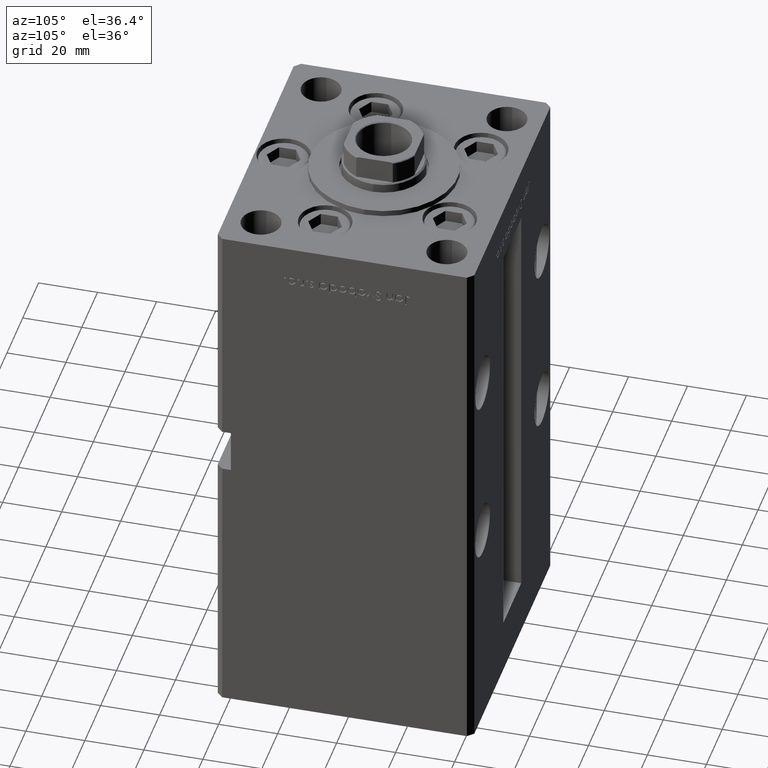
[diagram: clean part render]
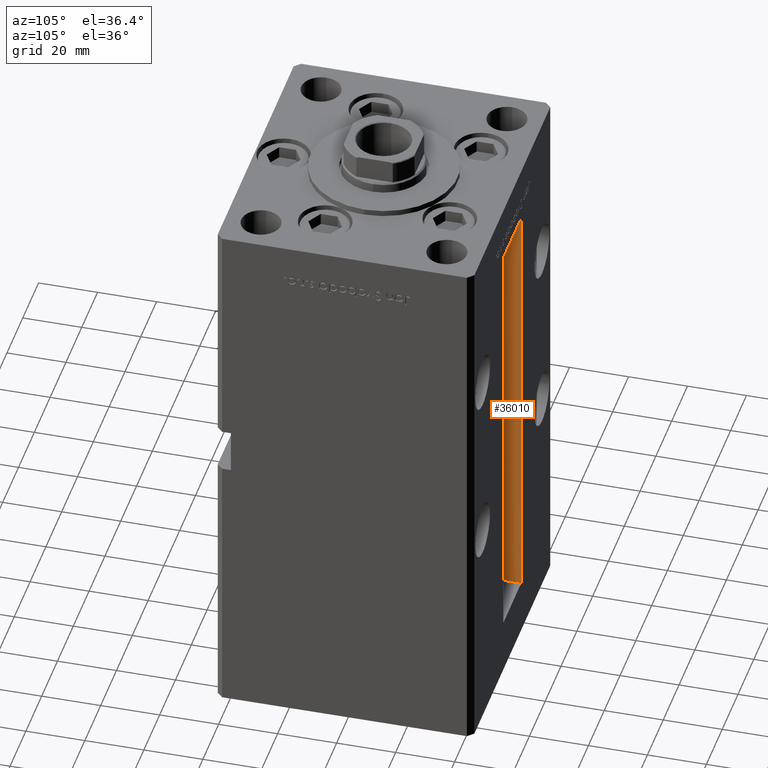
[diagram: same view with one face highlighted and labeled with its STEP entity id]
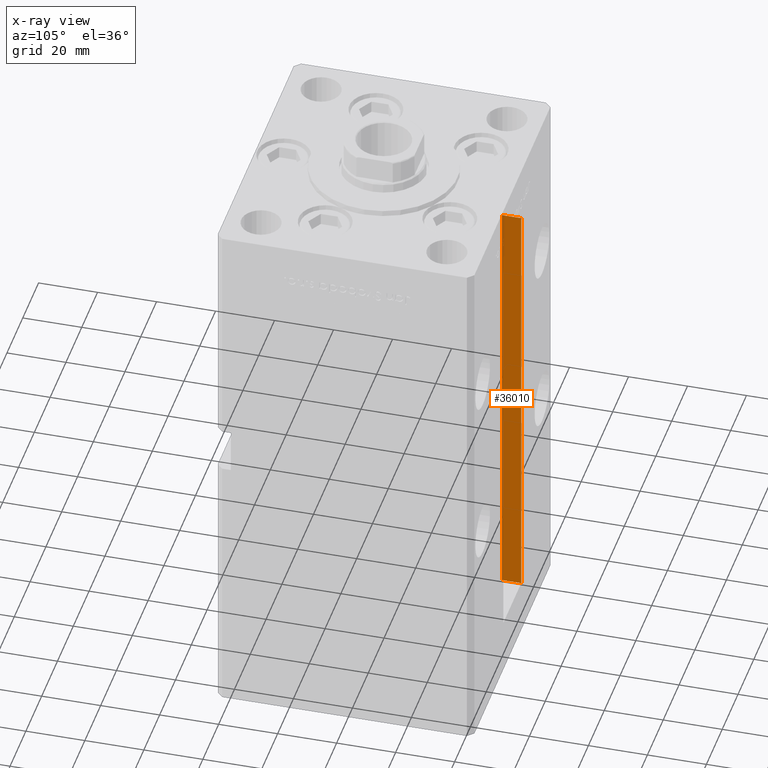
[diagram: x-ray of the same camera — body ghosted, the highlighted face saturated]
A machine part, auxiliary view. The second image highlights one B-rep face of the part: STEP entity #36010.
The next image is the same camera in x-ray: the body ghosted, the highlighted face saturated — about 8% of this face is hidden behind the body in this view.
In plain terms, the highlighted planar face has unit normal (-1, 0, 0).
Its self-contained STEP definition (entity closure, byte-faithful):
#890 = CARTESIAN_POINT ( 'NONE',  ( -11.24999999999999645, 43.50000000000000000, 148.5000000000000000 ) ) ;
#3297 = ORIENTED_EDGE ( 'NONE', *, *, #41214, .F. ) ;
#5935 = DIRECTION ( 'NONE',  ( -0.000000000000000000, -0.000000000000000000, 1.000000000000000000 ) ) ;
#6902 = DIRECTION ( 'NONE',  ( 0.000000000000000000, 0.000000000000000000, 1.000000000000000000 ) ) ;
#7066 = EDGE_CURVE ( 'NONE', #9656, #15330, #28619, .T. ) ;
#7373 = VERTEX_POINT ( 'NONE', #46807 ) ;
#9488 = EDGE_CURVE ( 'NONE', #48078, #15330, #51662, .T. ) ;
#9656 = VERTEX_POINT ( 'NONE', #28238 ) ;
#12179 = ORIENTED_EDGE ( 'NONE', *, *, #31104, .F. ) ;
#12210 = CARTESIAN_POINT ( 'NONE',  ( -11.24999999999999645, 37.00000000000000000, 0.000000000000000000 ) ) ;
#13730 = CARTESIAN_POINT ( 'NONE',  ( -11.24999999999999645, 43.50000000000000000, 0.000000000000000000 ) ) ;
#15330 = VERTEX_POINT ( 'NONE', #890 ) ;
#16828 = LINE ( 'NONE', #48841, #49001 ) ;
#18503 = PLANE ( 'NONE',  #33671 ) ;
#21825 = VECTOR ( 'NONE', #45551, 1000.000000000000000 ) ;
#22801 = CARTESIAN_POINT ( 'NONE',  ( -11.24999999999999645, 37.00000000000000000, 0.000000000000000000 ) ) ;
#26193 = VECTOR ( 'NONE', #5935, 1000.000000000000000 ) ;
#27830 = CARTESIAN_POINT ( 'NONE',  ( -11.24999999999999645, 0.000000000000000000, 148.5000000000000000 ) ) ;
#28238 = CARTESIAN_POINT ( 'NONE',  ( -11.24999999999999645, 37.00000000000000000, 148.5000000000000000 ) ) ;
#28619 = LINE ( 'NONE', #27830, #48508 ) ;
#31104 = EDGE_CURVE ( 'NONE', #7373, #9656, #16828, .T. ) ;
#33222 = DIRECTION ( 'NONE',  ( -0.000000000000000000, -0.000000000000000000, 1.000000000000000000 ) ) ;
#33671 = AXIS2_PLACEMENT_3D ( 'NONE', #22801, #51316, #6902 ) ;
#34186 = CARTESIAN_POINT ( 'NONE',  ( -11.24999999999999645, 43.50000000000000000, 0.000000000000000000 ) ) ;
#36010 = ADVANCED_FACE ( 'NONE', ( #43504 ), #18503, .F. ) ;
#39616 = EDGE_LOOP ( 'NONE', ( #12179, #3297, #52375, #46145 ) ) ;
#41214 = EDGE_CURVE ( 'NONE', #48078, #7373, #49058, .T. ) ;
#43504 = FACE_OUTER_BOUND ( 'NONE', #39616, .T. ) ;
#45551 = DIRECTION ( 'NONE',  ( -0.000000000000000000, -1.000000000000000000, -0.000000000000000000 ) ) ;
#46145 = ORIENTED_EDGE ( 'NONE', *, *, #7066, .F. ) ;
#46807 = CARTESIAN_POINT ( 'NONE',  ( -11.24999999999999645, 37.00000000000000000, 0.000000000000000000 ) ) ;
#48078 = VERTEX_POINT ( 'NONE', #13730 ) ;
#48508 = VECTOR ( 'NONE', #52579, 1000.000000000000000 ) ;
#48841 = CARTESIAN_POINT ( 'NONE',  ( -11.24999999999999645, 37.00000000000000000, 0.000000000000000000 ) ) ;
#49001 = VECTOR ( 'NONE', #33222, 1000.000000000000000 ) ;
#49058 = LINE ( 'NONE', #12210, #21825 ) ;
#51316 = DIRECTION ( 'NONE',  ( -1.000000000000000000, 0.000000000000000000, 0.000000000000000000 ) ) ;
#51662 = LINE ( 'NONE', #34186, #26193 ) ;
#52375 = ORIENTED_EDGE ( 'NONE', *, *, #9488, .T. ) ;
#52579 = DIRECTION ( 'NONE',  ( 0.000000000000000000, 1.000000000000000000, 0.000000000000000000 ) ) ;